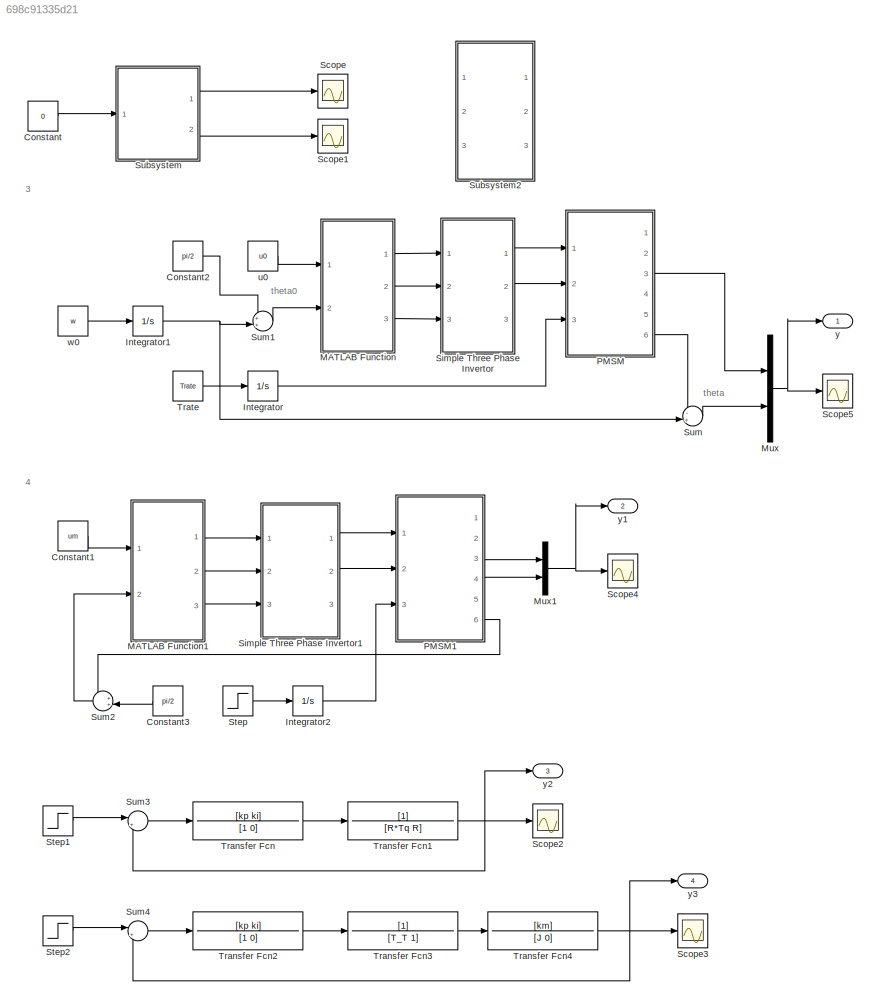
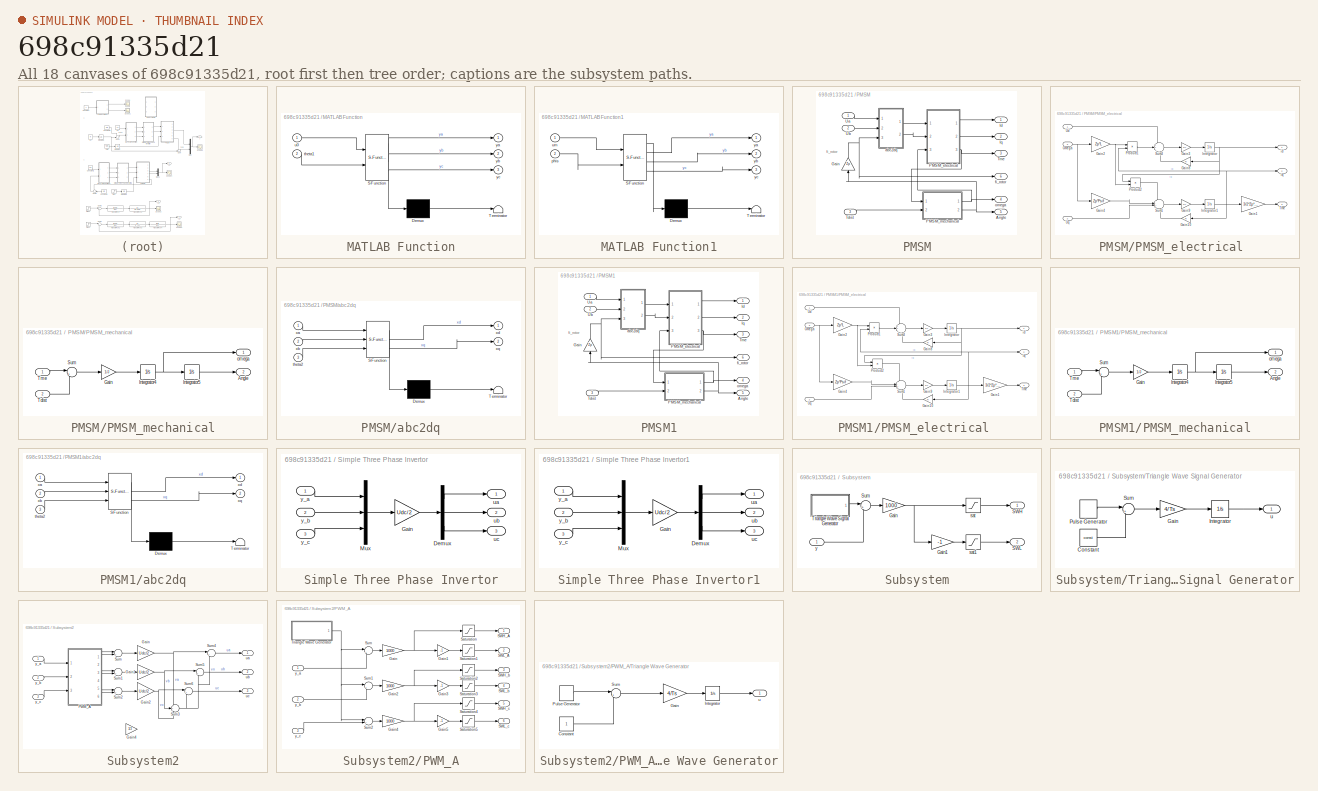
[diagram: thumbnail index - all 18 canvases of the model, root first then tree order]
MODEL slx_698c91335d21
KIND model
CONFIG AbsTol = auto
CONFIG EnableMultiTasking = off
CONFIG FixedStep = Ts
CONFIG MaxStep = Ts/10
CONFIG MinStep = auto
CONFIG RelTol = 1e-3
CONFIG SampleTimeConstraint = Unconstrained
CONFIG SolverName = ode23t
CONFIG StartTime = 0.0
CONFIG StopTime = Tmdl
BLOCK [Constant] Constant
  Value = 0
BLOCK [Constant] Constant1
  Value = um
BLOCK [Constant] Constant2
  Value = pi/2
BLOCK [Constant] Constant3
  NameLocation = top
  Value = pi/2
BLOCK [Integrator] Integrator
  Ports = [1, 1]
BLOCK [Integrator] Integrator1
  InitialCondition = -1
  Ports = [1, 1]
BLOCK [Integrator] Integrator2
  InitialCondition = -1
  Ports = [1, 1]
BLOCK [SubSystem] MATLAB Function
  ErrorFcn = Stateflow.Translate.translate
  PermitHierarchicalResolution = ExplicitOnly
  Ports = [2, 3]
  SFBlockType = MATLAB Function
  TreatAsAtomicUnit = on
BLOCK [Demux] MATLAB Function/ Demux 
  Outputs = 1
  Ports = [1, 1]
BLOCK [S-Function] MATLAB Function/ SFunction 
  EnableBusSupport = on
  FunctionName = sf_sfun
  PortCounts = [2 4]
  Ports = [2, 4]
  SFcnIsStateOwnerBlock = off
  SFunctionDeploymentMode = off
  Tag = Stateflow S-Function 1
BLOCK [Terminator] MATLAB Function/ Terminator 
BLOCK [Inport] MATLAB Function/theta1
  Port = 2
BLOCK [Inport] MATLAB Function/u0
BLOCK [Outport] MATLAB Function/ya
BLOCK [Outport] MATLAB Function/yb
  Port = 2
BLOCK [Outport] MATLAB Function/yc
  Port = 3
BLOCK [SubSystem] MATLAB Function1
  ErrorFcn = Stateflow.Translate.translate
  PermitHierarchicalResolution = ExplicitOnly
  Ports = [2, 3]
  SFBlockType = MATLAB Function
  TreatAsAtomicUnit = on
BLOCK [Demux] MATLAB Function1/ Demux 
  Outputs = 1
  Ports = [1, 1]
BLOCK [S-Function] MATLAB Function1/ SFunction 
  EnableBusSupport = on
  FunctionName = sf_sfun
  PortCounts = [2 4]
  Ports = [2, 4]
  SFcnIsStateOwnerBlock = off
  SFunctionDeploymentMode = off
  Tag = Stateflow S-Function 3
BLOCK [Terminator] MATLAB Function1/ Terminator 
BLOCK [Inport] MATLAB Function1/phis
  Port = 2
BLOCK [Inport] MATLAB Function1/um
BLOCK [Outport] MATLAB Function1/ya
BLOCK [Outport] MATLAB Function1/yb
  Port = 2
BLOCK [Outport] MATLAB Function1/yc
  Port = 3
BLOCK [Mux] Mux
  DisplayOption = bar
  Inputs = 2
  Ports = [2, 1]
BLOCK [Mux] Mux1
  DisplayOption = bar
  Inputs = 2
  Ports = [2, 1]
BLOCK [SubSystem] PMSM
  Ports = [3, 6]
BLOCK [Outport] PMSM/Angle
  Port = 5
BLOCK [Gain] PMSM/Gain
  Gain = Zp
  NameLocation = right
BLOCK [Outport] PMSM/Id
BLOCK [Outport] PMSM/Iq
  Port = 2
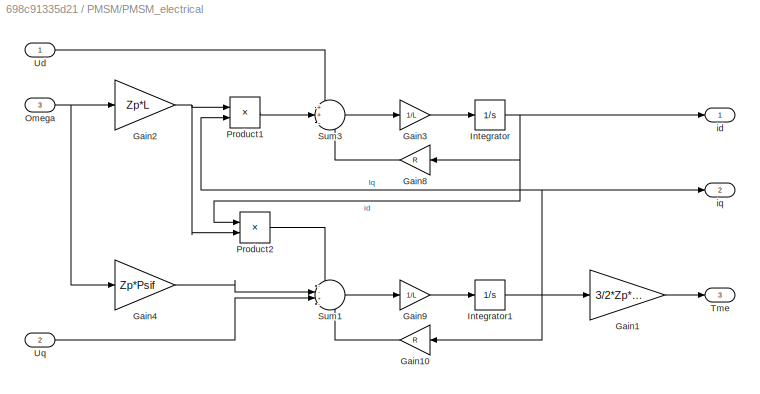
BLOCK [SubSystem] PMSM/PMSM_electrical 
  Ports = [3, 3]
BLOCK [Gain] PMSM/PMSM_electrical /Gain1
  Gain = 3/2*Zp*Psif
BLOCK [Gain] PMSM/PMSM_electrical /Gain10
  Gain = R
  NameLocation = top
BLOCK [Gain] PMSM/PMSM_electrical /Gain2
  Gain = Zp*L
BLOCK [Gain] PMSM/PMSM_electrical /Gain3
  Gain = 1/L
BLOCK [Gain] PMSM/PMSM_electrical /Gain4
  Gain = Zp*Psif
BLOCK [Gain] PMSM/PMSM_electrical /Gain8
  Gain = R
  NameLocation = top
BLOCK [Gain] PMSM/PMSM_electrical /Gain9
  Gain = 1/L
BLOCK [Integrator] PMSM/PMSM_electrical /Integrator
  Ports = [1, 1]
BLOCK [Integrator] PMSM/PMSM_electrical /Integrator1
  Ports = [1, 1]
BLOCK [Inport] PMSM/PMSM_electrical /Omega
  Port = 3
BLOCK [Product] PMSM/PMSM_electrical /Product1
  Ports = [2, 1]
BLOCK [Product] PMSM/PMSM_electrical /Product2
  Ports = [2, 1]
BLOCK [Sum] PMSM/PMSM_electrical /Sum1
  Inputs = --+-
  Ports = [4, 1]
BLOCK [Sum] PMSM/PMSM_electrical /Sum3
  Inputs = ++-
  Ports = [3, 1]
BLOCK [Outport] PMSM/PMSM_electrical /Tme
  Port = 3
BLOCK [Inport] PMSM/PMSM_electrical /Ud
BLOCK [Inport] PMSM/PMSM_electrical /Uq
  Port = 2
BLOCK [Outport] PMSM/PMSM_electrical /id
BLOCK [Outport] PMSM/PMSM_electrical /iq
  Port = 2
BLOCK [SubSystem] PMSM/PMSM_mechanical
  Ports = [2, 2]
BLOCK [Outport] PMSM/PMSM_mechanical/Angle
  Port = 2
BLOCK [Gain] PMSM/PMSM_mechanical/Gain
  Gain = 1/J
BLOCK [Integrator] PMSM/PMSM_mechanical/Integrator4
  Ports = [1, 1]
BLOCK [Integrator] PMSM/PMSM_mechanical/Integrator5
  Ports = [1, 1]
BLOCK [Sum] PMSM/PMSM_mechanical/Sum
  Inputs = |+-
  Ports = [2, 1]
BLOCK [Inport] PMSM/PMSM_mechanical/Tdist
  Port = 2
BLOCK [Inport] PMSM/PMSM_mechanical/Tme
BLOCK [Outport] PMSM/PMSM_mechanical/omega
BLOCK [Inport] PMSM/Tdist
  Port = 3
BLOCK [Outport] PMSM/Tme
  Port = 3
BLOCK [Inport] PMSM/Ua
BLOCK [Inport] PMSM/Ub
  Port = 2
BLOCK [SubSystem] PMSM/abc2dq
  ErrorFcn = Stateflow.Translate.translate
  PermitHierarchicalResolution = ExplicitOnly
  Ports = [3, 2]
  SFBlockType = MATLAB Function
  TreatAsAtomicUnit = on
BLOCK [Demux] PMSM/abc2dq/ Demux 
  Outputs = 1
  Ports = [1, 1]
BLOCK [S-Function] PMSM/abc2dq/ SFunction 
  EnableBusSupport = on
  FunctionName = sf_sfun
  PortCounts = [3 3]
  Ports = [3, 3]
  SFcnIsStateOwnerBlock = off
  SFunctionDeploymentMode = off
  Tag = Stateflow S-Function 2
BLOCK [Terminator] PMSM/abc2dq/ Terminator 
BLOCK [Inport] PMSM/abc2dq/theta2
  Port = 3
BLOCK [Inport] PMSM/abc2dq/xa
BLOCK [Inport] PMSM/abc2dq/xb
  Port = 2
BLOCK [Outport] PMSM/abc2dq/xd
BLOCK [Outport] PMSM/abc2dq/xq
  Port = 2
BLOCK [Outport] PMSM/fi_rotor
  Port = 6
BLOCK [Outport] PMSM/omega
  Port = 4
BLOCK [SubSystem] PMSM1
  Ports = [3, 6]
BLOCK [Outport] PMSM1/Angle
  Port = 5
BLOCK [Gain] PMSM1/Gain
  Gain = Zp
  NameLocation = right
BLOCK [Outport] PMSM1/Id
BLOCK [Outport] PMSM1/Iq
  Port = 2
BLOCK [SubSystem] PMSM1/PMSM_electrical 
  Ports = [3, 3]
BLOCK [Gain] PMSM1/PMSM_electrical /Gain1
  Gain = 3/2*Zp*Psif
BLOCK [Gain] PMSM1/PMSM_electrical /Gain10
  Gain = R
  NameLocation = top
BLOCK [Gain] PMSM1/PMSM_electrical /Gain2
  Gain = Zp*L
BLOCK [Gain] PMSM1/PMSM_electrical /Gain3
  Gain = 1/L
BLOCK [Gain] PMSM1/PMSM_electrical /Gain4
  Gain = Zp*Psif
BLOCK [Gain] PMSM1/PMSM_electrical /Gain8
  Gain = R
  NameLocation = top
BLOCK [Gain] PMSM1/PMSM_electrical /Gain9
  Gain = 1/L
BLOCK [Integrator] PMSM1/PMSM_electrical /Integrator
  Ports = [1, 1]
BLOCK [Integrator] PMSM1/PMSM_electrical /Integrator1
  Ports = [1, 1]
BLOCK [Inport] PMSM1/PMSM_electrical /Omega
  Port = 3
BLOCK [Product] PMSM1/PMSM_electrical /Product1
  Ports = [2, 1]
BLOCK [Product] PMSM1/PMSM_electrical /Product2
  Ports = [2, 1]
BLOCK [Sum] PMSM1/PMSM_electrical /Sum1
  Inputs = --+-
  Ports = [4, 1]
BLOCK [Sum] PMSM1/PMSM_electrical /Sum3
  Inputs = ++-
  Ports = [3, 1]
BLOCK [Outport] PMSM1/PMSM_electrical /Tme
  Port = 3
BLOCK [Inport] PMSM1/PMSM_electrical /Ud
BLOCK [Inport] PMSM1/PMSM_electrical /Uq
  Port = 2
BLOCK [Outport] PMSM1/PMSM_electrical /id
BLOCK [Outport] PMSM1/PMSM_electrical /iq
  Port = 2
BLOCK [SubSystem] PMSM1/PMSM_mechanical
  Ports = [2, 2]
BLOCK [Outport] PMSM1/PMSM_mechanical/Angle
  Port = 2
BLOCK [Gain] PMSM1/PMSM_mechanical/Gain
  Gain = 1/J
BLOCK [Integrator] PMSM1/PMSM_mechanical/Integrator4
  Ports = [1, 1]
BLOCK [Integrator] PMSM1/PMSM_mechanical/Integrator5
  Ports = [1, 1]
BLOCK [Sum] PMSM1/PMSM_mechanical/Sum
  Inputs = |+-
  Ports = [2, 1]
BLOCK [Inport] PMSM1/PMSM_mechanical/Tdist
  Port = 2
BLOCK [Inport] PMSM1/PMSM_mechanical/Tme
BLOCK [Outport] PMSM1/PMSM_mechanical/omega
BLOCK [Inport] PMSM1/Tdist
  Port = 3
BLOCK [Outport] PMSM1/Tme
  Port = 3
BLOCK [Inport] PMSM1/Ua
BLOCK [Inport] PMSM1/Ub
  Port = 2
BLOCK [SubSystem] PMSM1/abc2dq
  ErrorFcn = Stateflow.Translate.translate
  PermitHierarchicalResolution = ExplicitOnly
  Ports = [3, 2]
  SFBlockType = MATLAB Function
  TreatAsAtomicUnit = on
BLOCK [Demux] PMSM1/abc2dq/ Demux 
  Outputs = 1
  Ports = [1, 1]
BLOCK [S-Function] PMSM1/abc2dq/ SFunction 
  EnableBusSupport = on
  FunctionName = sf_sfun
  PortCounts = [3 3]
  Ports = [3, 3]
  SFcnIsStateOwnerBlock = off
  SFunctionDeploymentMode = off
  Tag = Stateflow S-Function 4
BLOCK [Terminator] PMSM1/abc2dq/ Terminator 
BLOCK [Inport] PMSM1/abc2dq/theta2
  Port = 3
BLOCK [Inport] PMSM1/abc2dq/xa
BLOCK [Inport] PMSM1/abc2dq/xb
  Port = 2
BLOCK [Outport] PMSM1/abc2dq/xd
BLOCK [Outport] PMSM1/abc2dq/xq
  Port = 2
BLOCK [Outport] PMSM1/fi_rotor
  Port = 6
BLOCK [Outport] PMSM1/omega
  Port = 4
BLOCK [Scope] Scope
  Floating = off
  NumInputPorts = 1
  Ports = [1]
  ScopeSpecificationString = Simulink.scopes.TimeScopeBlockCfg('CurrentConfiguration', extmgr.ConfigurationSet(extmgr.Configuration('Core','General UI',true,'FigureColor',[1 1 1]),extmgr.Configuration('Core','Source UI',true),extmgr.Configuration('Sources','WiredSimulink',true,'DataLoggingVariableName','ScopeData1'),extmgr.Configuration('Visuals','Time Domain',true,'SerializedDisplays',{struct('MinYLimReal','-0.125','MaxYLimR...<+2244ch>
BLOCK [Scope] Scope1
  Floating = off
  NumInputPorts = 1
  Ports = [1]
  ScopeSpecificationString = Simulink.scopes.TimeScopeBlockCfg('CurrentConfiguration', extmgr.ConfigurationSet(extmgr.Configuration('Core','General UI',true,'FigureColor',[1 1 1]),extmgr.Configuration('Core','Source UI',true),extmgr.Configuration('Sources','WiredSimulink',true),extmgr.Configuration('Visuals','Time Domain',true,'SerializedDisplays',{struct('MinYLimReal','-0.125','MaxYLimReal','1.125','YLabelReal','','MinYLimMa...<+2205ch>
BLOCK [Scope] Scope2
  Floating = off
  NumInputPorts = 1
  Ports = [1]
  ScopeSpecificationString = Simulink.scopes.TimeScopeBlockCfg('CurrentConfiguration', extmgr.ConfigurationSet(extmgr.Configuration('Core','General UI',true,'FigureColor',[1 1 1]),extmgr.Configuration('Core','Source UI',true),extmgr.Configuration('Sources','WiredSimulink',true,'DataLoggingVariableName','ScopeData1'),extmgr.Configuration('Visuals','Time Domain',true,'SerializedDisplays',{struct('MinYLimReal','0.00424','MaxYLim...<+2328ch>
BLOCK [Scope] Scope3
  Floating = off
  NumInputPorts = 1
  Ports = [1]
  ScopeSpecificationString = Simulink.scopes.TimeScopeBlockCfg('CurrentConfiguration', extmgr.ConfigurationSet(extmgr.Configuration('Core','General UI',true,'FigureColor',[1 1 1]),extmgr.Configuration('Core','Source UI',true),extmgr.Configuration('Sources','WiredSimulink',true,'DataLoggingVariableName','ScopeData2'),extmgr.Configuration('Visuals','Time Domain',true,'SerializedDisplays',{struct('MinYLimReal','0.00424','MaxYLim...<+2367ch>
BLOCK [Scope] Scope4
  Floating = off
  NumInputPorts = 1
  Ports = [1]
  ScopeSpecificationString = Simulink.scopes.TimeScopeBlockCfg('CurrentConfiguration', extmgr.ConfigurationSet(extmgr.Configuration('Core','General UI',true,'FigureColor',[1 1 1]),extmgr.Configuration('Core','Source UI',true),extmgr.Configuration('Sources','WiredSimulink',true,'DataLoggingVariableName','ScopeData3'),extmgr.Configuration('Visuals','Time Domain',true,'SerializedDisplays',{struct('MinYLimReal','-0.125','MaxYLimR...<+2244ch>
BLOCK [Scope] Scope5
  Floating = off
  NumInputPorts = 1
  Ports = [1]
  ScopeSpecificationString = Simulink.scopes.TimeScopeBlockCfg('CurrentConfiguration', extmgr.ConfigurationSet(extmgr.Configuration('Core','General UI',true,'FigureColor',[1 1 1]),extmgr.Configuration('Core','Source UI',true),extmgr.Configuration('Sources','WiredSimulink',true,'DataLoggingVariableName','ScopeData5'),extmgr.Configuration('Visuals','Time Domain',true,'SerializedDisplays',{struct('MinYLimReal','-5.11911','MaxYLi...<+2387ch>
BLOCK [SubSystem] Simple Three Phase Invertor
  Ports = [3, 3]
BLOCK [Demux] Simple Three Phase Invertor/Demux
  Outputs = 3
  Ports = [1, 3]
BLOCK [Gain] Simple Three Phase Invertor/Gain
  Gain = Udc/2
BLOCK [Mux] Simple Three Phase Invertor/Mux
  DisplayOption = bar
  Inputs = 3
  Ports = [3, 1]
BLOCK [Outport] Simple Three Phase Invertor/ua
BLOCK [Outport] Simple Three Phase Invertor/ub
  Port = 2
BLOCK [Outport] Simple Three Phase Invertor/uc
  Port = 3
BLOCK [Inport] Simple Three Phase Invertor/y_a
BLOCK [Inport] Simple Three Phase Invertor/y_b
  Port = 2
BLOCK [Inport] Simple Three Phase Invertor/y_c
  Port = 3
BLOCK [SubSystem] Simple Three Phase Invertor1
  Ports = [3, 3]
BLOCK [Demux] Simple Three Phase Invertor1/Demux
  Outputs = 3
  Ports = [1, 3]
BLOCK [Gain] Simple Three Phase Invertor1/Gain
  Gain = Udc/2
BLOCK [Mux] Simple Three Phase Invertor1/Mux
  DisplayOption = bar
  Inputs = 3
  Ports = [3, 1]
BLOCK [Outport] Simple Three Phase Invertor1/ua
BLOCK [Outport] Simple Three Phase Invertor1/ub
  Port = 2
BLOCK [Outport] Simple Three Phase Invertor1/uc
  Port = 3
BLOCK [Inport] Simple Three Phase Invertor1/y_a
BLOCK [Inport] Simple Three Phase Invertor1/y_b
  Port = 2
BLOCK [Inport] Simple Three Phase Invertor1/y_c
  Port = 3
BLOCK [Step] Step
  After = Trate
  SampleTime = 0
BLOCK [Step] Step1
  SampleTime = 0
  Time = 0
BLOCK [Step] Step2
  SampleTime = 0
  Time = 0
BLOCK [SubSystem] Subsystem
  Ports = [1, 2]
BLOCK [Gain] Subsystem/Gain
  Gain = 1000
BLOCK [Gain] Subsystem/Gain1
  Gain = -1
BLOCK [Outport] Subsystem/SWH
BLOCK [Outport] Subsystem/SWL
  Port = 2
BLOCK [Sum] Subsystem/Sum
  Inputs = |+-
  Ports = [2, 1]
BLOCK [SubSystem] Subsystem/Triangle Wave Signal Generator
  Ports = [0, 1]
BLOCK [Constant] Subsystem/Triangle Wave Signal Generator/Constant
  Value = const
BLOCK [Gain] Subsystem/Triangle Wave Signal Generator/Gain
  Gain = 4/Ts
BLOCK [Integrator] Subsystem/Triangle Wave Signal Generator/Integrator
  InitialCondition = -1
  Ports = [1, 1]
BLOCK [DiscretePulseGenerator] Subsystem/Triangle Wave Signal Generator/Pulse Generator
  Amplitude = 2
  Period = Ts
  Ports = [0, 1]
  PulseType = Time based
  PulseWidth = 50
BLOCK [Sum] Subsystem/Triangle Wave Signal Generator/Sum
  Inputs = |+-
  Ports = [2, 1]
BLOCK [Outport] Subsystem/Triangle Wave Signal Generator/u
BLOCK [Saturate] Subsystem/sat
  LowerLimit = 0
  UpperLimit = 1
BLOCK [Saturate] Subsystem/sat1
  LowerLimit = 0
  UpperLimit = 1
BLOCK [Inport] Subsystem/y
BLOCK [SubSystem] Subsystem2
  Ports = [3, 3]
BLOCK [Gain] Subsystem2/Gain
  Gain = Udc/2
BLOCK [Gain] Subsystem2/Gain1
  Gain = Udc/2
BLOCK [Gain] Subsystem2/Gain2
  Gain = Udc/2
BLOCK [Gain] Subsystem2/Gain4
  Gain = 1/3
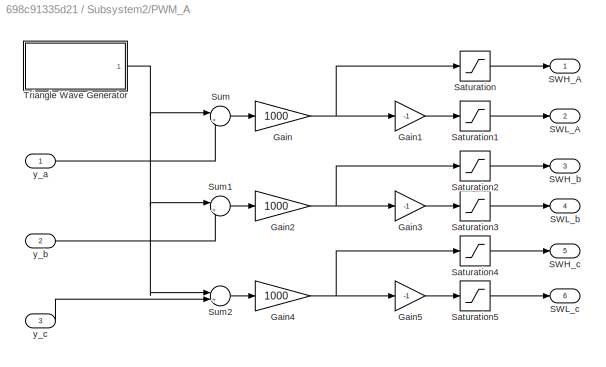
BLOCK [SubSystem] Subsystem2/PWM_A
  Ports = [3, 6]
BLOCK [Gain] Subsystem2/PWM_A/Gain
  Gain = 1000
BLOCK [Gain] Subsystem2/PWM_A/Gain1
  Gain = -1
BLOCK [Gain] Subsystem2/PWM_A/Gain2
  Gain = 1000
BLOCK [Gain] Subsystem2/PWM_A/Gain3
  Gain = -1
BLOCK [Gain] Subsystem2/PWM_A/Gain4
  Gain = 1000
BLOCK [Gain] Subsystem2/PWM_A/Gain5
  Gain = -1
BLOCK [Outport] Subsystem2/PWM_A/SWH_A
BLOCK [Outport] Subsystem2/PWM_A/SWH_b
  Port = 3
BLOCK [Outport] Subsystem2/PWM_A/SWH_c
  Port = 5
BLOCK [Outport] Subsystem2/PWM_A/SWL_A
  Port = 2
BLOCK [Outport] Subsystem2/PWM_A/SWL_b
  Port = 4
BLOCK [Outport] Subsystem2/PWM_A/SWL_c
  Port = 6
BLOCK [Saturate] Subsystem2/PWM_A/Saturation
  LowerLimit = 0
  UpperLimit = 1
BLOCK [Saturate] Subsystem2/PWM_A/Saturation1
  LowerLimit = 0
  UpperLimit = 1
BLOCK [Saturate] Subsystem2/PWM_A/Saturation2
  LowerLimit = 0
  UpperLimit = 1
BLOCK [Saturate] Subsystem2/PWM_A/Saturation3
  LowerLimit = 0
  UpperLimit = 1
BLOCK [Saturate] Subsystem2/PWM_A/Saturation4
  LowerLimit = 0
  UpperLimit = 1
BLOCK [Saturate] Subsystem2/PWM_A/Saturation5
  LowerLimit = 0
  UpperLimit = 1
BLOCK [Sum] Subsystem2/PWM_A/Sum
  Inputs = |+-
  Ports = [2, 1]
BLOCK [Sum] Subsystem2/PWM_A/Sum1
  Inputs = |+-
  Ports = [2, 1]
BLOCK [Sum] Subsystem2/PWM_A/Sum2
  Inputs = |+-
  Ports = [2, 1]
BLOCK [SubSystem] Subsystem2/PWM_A/Triangle Wave Generator
  Ports = [0, 1]
BLOCK [Constant] Subsystem2/PWM_A/Triangle Wave Generator/Constant
BLOCK [Gain] Subsystem2/PWM_A/Triangle Wave Generator/Gain
  Gain = 4/Ts
BLOCK [Integrator] Subsystem2/PWM_A/Triangle Wave Generator/Integrator
  InitialCondition = -1
  Ports = [1, 1]
BLOCK [DiscretePulseGenerator] Subsystem2/PWM_A/Triangle Wave Generator/Pulse Generator
  Amplitude = 2
  Period = Ts
  Ports = [0, 1]
  PulseType = Time based
  PulseWidth = 50
BLOCK [Sum] Subsystem2/PWM_A/Triangle Wave Generator/Sum
  Inputs = |+-
  Ports = [2, 1]
BLOCK [Outport] Subsystem2/PWM_A/Triangle Wave Generator/u
BLOCK [Inport] Subsystem2/PWM_A/y_a
BLOCK [Inport] Subsystem2/PWM_A/y_b
  Port = 2
BLOCK [Inport] Subsystem2/PWM_A/y_c
  Port = 3
BLOCK [Sum] Subsystem2/Sum
  Inputs = |+-
  Ports = [2, 1]
BLOCK [Sum] Subsystem2/Sum1
  Inputs = |+-
  Ports = [2, 1]
BLOCK [Sum] Subsystem2/Sum2
  Inputs = |+-
  Ports = [2, 1]
BLOCK [Sum] Subsystem2/Sum3
  Inputs = +++
  Ports = [3, 1]
BLOCK [Sum] Subsystem2/Sum4
  Inputs = |+-
  Ports = [2, 1]
BLOCK [Sum] Subsystem2/Sum5
  Inputs = |+-
  Ports = [2, 1]
BLOCK [Sum] Subsystem2/Sum6
  Inputs = |+-
  Ports = [2, 1]
BLOCK [Outport] Subsystem2/ua
BLOCK [Outport] Subsystem2/ub
  Port = 2
BLOCK [Outport] Subsystem2/uc
  Port = 3
BLOCK [Inport] Subsystem2/y_a
BLOCK [Inport] Subsystem2/y_b
  Port = 2
BLOCK [Inport] Subsystem2/y_c
  Port = 3
BLOCK [Sum] Sum
  Inputs = -+|
  Ports = [2, 1]
BLOCK [Sum] Sum1
  Inputs = ++|
  Ports = [2, 1]
BLOCK [Sum] Sum2
  Inputs = ++|
  NameLocation = top
  Ports = [2, 1]
BLOCK [Sum] Sum3
  Inputs = |+-
  Ports = [2, 1]
BLOCK [Sum] Sum4
  Inputs = |+-
  Ports = [2, 1]
BLOCK [TransferFcn] Transfer Fcn
  Denominator = [1 0]
  Numerator = [kp ki]
BLOCK [TransferFcn] Transfer Fcn1
  Denominator = [R*Tq R]
BLOCK [TransferFcn] Transfer Fcn2
  Denominator = [1 0]
  Numerator = [kp ki]
BLOCK [TransferFcn] Transfer Fcn3
  Denominator = [T_T 1]
BLOCK [TransferFcn] Transfer Fcn4
  Denominator = [J 0]
  Numerator = [km]
BLOCK [Constant] Trate
  Value = Trate
BLOCK [Constant] u0
  Value = u0
BLOCK [Constant] w0
  Value = w
BLOCK [Outport] y
BLOCK [Outport] y1
  Port = 2
BLOCK [Outport] y2
  Port = 3
BLOCK [Outport] y3
  Port = 4
ANNOTATION (root): 3
ANNOTATION (root): 4
ANNOTATION (root): theta0
ANNOTATION (root): theta
ANNOTATION PMSM: fi_rotor
ANNOTATION PMSM1: fi_rotor
LINE Constant1:1 -> MATLAB Function1:1
LINE Constant2:1 -> Sum1:1
LINE Constant3:1 -> Sum2:2
LINE Constant:1 -> Subsystem:1
NET Integrator1:1 -> Sum1:2, Sum:2
LINE Integrator2:1 -> PMSM1:3
LINE Integrator:1 -> PMSM:3
LINE MATLAB Function1:1 -> Simple Three Phase Invertor1:1
LINE MATLAB Function1:2 -> Simple Three Phase Invertor1:2
LINE MATLAB Function1:3 -> Simple Three Phase Invertor1:3
LINE MATLAB Function:1 -> Simple Three Phase Invertor:1
LINE MATLAB Function:2 -> Simple Three Phase Invertor:2
LINE MATLAB Function:3 -> Simple Three Phase Invertor:3
NET Mux1:1 -> Scope4:1, y1:1
NET Mux:1 -> Scope5:1, y:1
NET PMSM/Gain:1 -> PMSM/abc2dq:3, PMSM/fi_rotor:1
LINE PMSM/PMSM_electrical /Gain10:1 -> PMSM/PMSM_electrical /Sum1:4
LINE PMSM/PMSM_electrical /Gain1:1 -> PMSM/PMSM_electrical /Tme:1
NET PMSM/PMSM_electrical /Gain2:1 -> PMSM/PMSM_electrical /Product1:1, PMSM/PMSM_electrical /Product2:2
LINE PMSM/PMSM_electrical /Gain3:1 -> PMSM/PMSM_electrical /Integrator:1
LINE PMSM/PMSM_electrical /Gain4:1 -> PMSM/PMSM_electrical /Sum1:2
LINE PMSM/PMSM_electrical /Gain8:1 -> PMSM/PMSM_electrical /Sum3:3
LINE PMSM/PMSM_electrical /Gain9:1 -> PMSM/PMSM_electrical /Integrator1:1
NET PMSM/PMSM_electrical /Integrator1:1 -> PMSM/PMSM_electrical /Gain10:1, PMSM/PMSM_electrical /Gain1:1, PMSM/PMSM_electrical /Product1:2, PMSM/PMSM_electrical /iq:1
NET PMSM/PMSM_electrical /Integrator:1 -> PMSM/PMSM_electrical /Gain8:1, PMSM/PMSM_electrical /Product2:1, PMSM/PMSM_electrical /id:1
NET PMSM/PMSM_electrical /Omega:1 -> PMSM/PMSM_electrical /Gain2:1, PMSM/PMSM_electrical /Gain4:1
LINE PMSM/PMSM_electrical /Product1:1 -> PMSM/PMSM_electrical /Sum3:2
LINE PMSM/PMSM_electrical /Product2:1 -> PMSM/PMSM_electrical /Sum1:1
LINE PMSM/PMSM_electrical /Sum1:1 -> PMSM/PMSM_electrical /Gain9:1
LINE PMSM/PMSM_electrical /Sum3:1 -> PMSM/PMSM_electrical /Gain3:1
LINE PMSM/PMSM_electrical /Ud:1 -> PMSM/PMSM_electrical /Sum3:1
LINE PMSM/PMSM_electrical /Uq:1 -> PMSM/PMSM_electrical /Sum1:3
LINE PMSM/PMSM_electrical :1 -> PMSM/Id:1
LINE PMSM/PMSM_electrical :2 -> PMSM/Iq:1
NET PMSM/PMSM_electrical :3 -> PMSM/PMSM_mechanical:1, PMSM/Tme:1
LINE PMSM/PMSM_mechanical/Gain:1 -> PMSM/PMSM_mechanical/Integrator4:1
NET PMSM/PMSM_mechanical/Integrator4:1 -> PMSM/PMSM_mechanical/Integrator5:1, PMSM/PMSM_mechanical/omega:1
LINE PMSM/PMSM_mechanical/Integrator5:1 -> PMSM/PMSM_mechanical/Angle:1
LINE PMSM/PMSM_mechanical/Sum:1 -> PMSM/PMSM_mechanical/Gain:1
LINE PMSM/PMSM_mechanical/Tdist:1 -> PMSM/PMSM_mechanical/Sum:2
LINE PMSM/PMSM_mechanical/Tme:1 -> PMSM/PMSM_mechanical/Sum:1
NET PMSM/PMSM_mechanical:1 -> PMSM/PMSM_electrical :3, PMSM/omega:1
NET PMSM/PMSM_mechanical:2 -> PMSM/Angle:1, PMSM/Gain:1
LINE PMSM/Tdist:1 -> PMSM/PMSM_mechanical:2
LINE PMSM/Ua:1 -> PMSM/abc2dq:1
LINE PMSM/Ub:1 -> PMSM/abc2dq:2
LINE PMSM/abc2dq:1 -> PMSM/PMSM_electrical :1
LINE PMSM/abc2dq:2 -> PMSM/PMSM_electrical :2
NET PMSM1/Gain:1 -> PMSM1/abc2dq:3, PMSM1/fi_rotor:1
LINE PMSM1/PMSM_electrical /Gain10:1 -> PMSM1/PMSM_electrical /Sum1:4
LINE PMSM1/PMSM_electrical /Gain1:1 -> PMSM1/PMSM_electrical /Tme:1
NET PMSM1/PMSM_electrical /Gain2:1 -> PMSM1/PMSM_electrical /Product1:1, PMSM1/PMSM_electrical /Product2:2
LINE PMSM1/PMSM_electrical /Gain3:1 -> PMSM1/PMSM_electrical /Integrator:1
LINE PMSM1/PMSM_electrical /Gain4:1 -> PMSM1/PMSM_electrical /Sum1:2
LINE PMSM1/PMSM_electrical /Gain8:1 -> PMSM1/PMSM_electrical /Sum3:3
LINE PMSM1/PMSM_electrical /Gain9:1 -> PMSM1/PMSM_electrical /Integrator1:1
NET PMSM1/PMSM_electrical /Integrator1:1 -> PMSM1/PMSM_electrical /Gain10:1, PMSM1/PMSM_electrical /Gain1:1, PMSM1/PMSM_electrical /Product1:2, PMSM1/PMSM_electrical /iq:1
NET PMSM1/PMSM_electrical /Integrator:1 -> PMSM1/PMSM_electrical /Gain8:1, PMSM1/PMSM_electrical /Product2:1, PMSM1/PMSM_electrical /id:1
NET PMSM1/PMSM_electrical /Omega:1 -> PMSM1/PMSM_electrical /Gain2:1, PMSM1/PMSM_electrical /Gain4:1
LINE PMSM1/PMSM_electrical /Product1:1 -> PMSM1/PMSM_electrical /Sum3:2
LINE PMSM1/PMSM_electrical /Product2:1 -> PMSM1/PMSM_electrical /Sum1:1
LINE PMSM1/PMSM_electrical /Sum1:1 -> PMSM1/PMSM_electrical /Gain9:1
LINE PMSM1/PMSM_electrical /Sum3:1 -> PMSM1/PMSM_electrical /Gain3:1
LINE PMSM1/PMSM_electrical /Ud:1 -> PMSM1/PMSM_electrical /Sum3:1
LINE PMSM1/PMSM_electrical /Uq:1 -> PMSM1/PMSM_electrical /Sum1:3
LINE PMSM1/PMSM_electrical :1 -> PMSM1/Id:1
LINE PMSM1/PMSM_electrical :2 -> PMSM1/Iq:1
NET PMSM1/PMSM_electrical :3 -> PMSM1/PMSM_mechanical:1, PMSM1/Tme:1
LINE PMSM1/PMSM_mechanical/Gain:1 -> PMSM1/PMSM_mechanical/Integrator4:1
NET PMSM1/PMSM_mechanical/Integrator4:1 -> PMSM1/PMSM_mechanical/Integrator5:1, PMSM1/PMSM_mechanical/omega:1
LINE PMSM1/PMSM_mechanical/Integrator5:1 -> PMSM1/PMSM_mechanical/Angle:1
LINE PMSM1/PMSM_mechanical/Sum:1 -> PMSM1/PMSM_mechanical/Gain:1
LINE PMSM1/PMSM_mechanical/Tdist:1 -> PMSM1/PMSM_mechanical/Sum:2
LINE PMSM1/PMSM_mechanical/Tme:1 -> PMSM1/PMSM_mechanical/Sum:1
NET PMSM1/PMSM_mechanical:1 -> PMSM1/PMSM_electrical :3, PMSM1/omega:1
NET PMSM1/PMSM_mechanical:2 -> PMSM1/Angle:1, PMSM1/Gain:1
LINE PMSM1/Tdist:1 -> PMSM1/PMSM_mechanical:2
LINE PMSM1/Ua:1 -> PMSM1/abc2dq:1
LINE PMSM1/Ub:1 -> PMSM1/abc2dq:2
LINE PMSM1/abc2dq:1 -> PMSM1/PMSM_electrical :1
LINE PMSM1/abc2dq:2 -> PMSM1/PMSM_electrical :2
LINE PMSM1:3 -> Mux1:1
LINE PMSM1:4 -> Mux1:2
LINE PMSM1:6 -> Sum2:1
LINE PMSM:3 -> Mux:1
LINE PMSM:6 -> Sum:1
LINE Simple Three Phase Invertor/Demux:1 -> Simple Three Phase Invertor/ua:1
LINE Simple Three Phase Invertor/Demux:2 -> Simple Three Phase Invertor/ub:1
LINE Simple Three Phase Invertor/Demux:3 -> Simple Three Phase Invertor/uc:1
LINE Simple Three Phase Invertor/Gain:1 -> Simple Three Phase Invertor/Demux:1
LINE Simple Three Phase Invertor/Mux:1 -> Simple Three Phase Invertor/Gain:1
LINE Simple Three Phase Invertor/y_a:1 -> Simple Three Phase Invertor/Mux:1
LINE Simple Three Phase Invertor/y_b:1 -> Simple Three Phase Invertor/Mux:2
LINE Simple Three Phase Invertor/y_c:1 -> Simple Three Phase Invertor/Mux:3
LINE Simple Three Phase Invertor1/Demux:1 -> Simple Three Phase Invertor1/ua:1
LINE Simple Three Phase Invertor1/Demux:2 -> Simple Three Phase Invertor1/ub:1
LINE Simple Three Phase Invertor1/Demux:3 -> Simple Three Phase Invertor1/uc:1
LINE Simple Three Phase Invertor1/Gain:1 -> Simple Three Phase Invertor1/Demux:1
LINE Simple Three Phase Invertor1/Mux:1 -> Simple Three Phase Invertor1/Gain:1
LINE Simple Three Phase Invertor1/y_a:1 -> Simple Three Phase Invertor1/Mux:1
LINE Simple Three Phase Invertor1/y_b:1 -> Simple Three Phase Invertor1/Mux:2
LINE Simple Three Phase Invertor1/y_c:1 -> Simple Three Phase Invertor1/Mux:3
LINE Simple Three Phase Invertor1:1 -> PMSM1:1
LINE Simple Three Phase Invertor1:2 -> PMSM1:2
LINE Simple Three Phase Invertor:1 -> PMSM:1
LINE Simple Three Phase Invertor:2 -> PMSM:2
LINE Step1:1 -> Sum3:1
LINE Step2:1 -> Sum4:1
LINE Step:1 -> Integrator2:1
LINE Subsystem/Gain1:1 -> Subsystem/sat1:1
NET Subsystem/Gain:1 -> Subsystem/Gain1:1, Subsystem/sat:1
LINE Subsystem/Sum:1 -> Subsystem/Gain:1
LINE Subsystem/Triangle Wave Signal Generator/Constant:1 -> Subsystem/Triangle Wave Signal Generator/Sum:2
LINE Subsystem/Triangle Wave Signal Generator/Gain:1 -> Subsystem/Triangle Wave Signal Generator/Integrator:1
LINE Subsystem/Triangle Wave Signal Generator/Integrator:1 -> Subsystem/Triangle Wave Signal Generator/u:1
LINE Subsystem/Triangle Wave Signal Generator/Pulse Generator:1 -> Subsystem/Triangle Wave Signal Generator/Sum:1
LINE Subsystem/Triangle Wave Signal Generator/Sum:1 -> Subsystem/Triangle Wave Signal Generator/Gain:1
LINE Subsystem/Triangle Wave Signal Generator:1 -> Subsystem/Sum:1
LINE Subsystem/sat1:1 -> Subsystem/SWL:1
LINE Subsystem/sat:1 -> Subsystem/SWH:1
LINE Subsystem/y:1 -> Subsystem/Sum:2
NET Subsystem2/Gain1:1 -> Subsystem2/Sum3:2, Subsystem2/Sum5:1
NET Subsystem2/Gain2:1 -> Subsystem2/Sum3:3, Subsystem2/Sum6:1
NET Subsystem2/Gain:1 -> Subsystem2/Sum3:1, Subsystem2/Sum4:1
LINE Subsystem2/PWM_A/Gain1:1 -> Subsystem2/PWM_A/Saturation1:1
NET Subsystem2/PWM_A/Gain2:1 -> Subsystem2/PWM_A/Gain3:1, Subsystem2/PWM_A/Saturation2:1
LINE Subsystem2/PWM_A/Gain3:1 -> Subsystem2/PWM_A/Saturation3:1
NET Subsystem2/PWM_A/Gain4:1 -> Subsystem2/PWM_A/Gain5:1, Subsystem2/PWM_A/Saturation4:1
LINE Subsystem2/PWM_A/Gain5:1 -> Subsystem2/PWM_A/Saturation5:1
NET Subsystem2/PWM_A/Gain:1 -> Subsystem2/PWM_A/Gain1:1, Subsystem2/PWM_A/Saturation:1
LINE Subsystem2/PWM_A/Saturation1:1 -> Subsystem2/PWM_A/SWL_A:1
LINE Subsystem2/PWM_A/Saturation2:1 -> Subsystem2/PWM_A/SWH_b:1
LINE Subsystem2/PWM_A/Saturation3:1 -> Subsystem2/PWM_A/SWL_b:1
LINE Subsystem2/PWM_A/Saturation4:1 -> Subsystem2/PWM_A/SWH_c:1
LINE Subsystem2/PWM_A/Saturation5:1 -> Subsystem2/PWM_A/SWL_c:1
LINE Subsystem2/PWM_A/Saturation:1 -> Subsystem2/PWM_A/SWH_A:1
LINE Subsystem2/PWM_A/Sum1:1 -> Subsystem2/PWM_A/Gain2:1
LINE Subsystem2/PWM_A/Sum2:1 -> Subsystem2/PWM_A/Gain4:1
LINE Subsystem2/PWM_A/Sum:1 -> Subsystem2/PWM_A/Gain:1
LINE Subsystem2/PWM_A/Triangle Wave Generator/Constant:1 -> Subsystem2/PWM_A/Triangle Wave Generator/Sum:2
LINE Subsystem2/PWM_A/Triangle Wave Generator/Gain:1 -> Subsystem2/PWM_A/Triangle Wave Generator/Integrator:1
LINE Subsystem2/PWM_A/Triangle Wave Generator/Integrator:1 -> Subsystem2/PWM_A/Triangle Wave Generator/u:1
LINE Subsystem2/PWM_A/Triangle Wave Generator/Pulse Generator:1 -> Subsystem2/PWM_A/Triangle Wave Generator/Sum:1
LINE Subsystem2/PWM_A/Triangle Wave Generator/Sum:1 -> Subsystem2/PWM_A/Triangle Wave Generator/Gain:1
NET Subsystem2/PWM_A/Triangle Wave Generator:1 -> Subsystem2/PWM_A/Sum1:1, Subsystem2/PWM_A/Sum2:1, Subsystem2/PWM_A/Sum:1
LINE Subsystem2/PWM_A/y_a:1 -> Subsystem2/PWM_A/Sum:2
LINE Subsystem2/PWM_A/y_b:1 -> Subsystem2/PWM_A/Sum1:2
LINE Subsystem2/PWM_A/y_c:1 -> Subsystem2/PWM_A/Sum2:2
LINE Subsystem2/PWM_A:1 -> Subsystem2/Sum:1
LINE Subsystem2/PWM_A:2 -> Subsystem2/Sum:2
LINE Subsystem2/PWM_A:3 -> Subsystem2/Sum1:1
LINE Subsystem2/PWM_A:4 -> Subsystem2/Sum1:2
LINE Subsystem2/PWM_A:5 -> Subsystem2/Sum2:1
LINE Subsystem2/PWM_A:6 -> Subsystem2/Sum2:2
LINE Subsystem2/Sum1:1 -> Subsystem2/Gain1:1
LINE Subsystem2/Sum2:1 -> Subsystem2/Gain2:1
NET Subsystem2/Sum3:1 -> Subsystem2/Sum4:2, Subsystem2/Sum5:2, Subsystem2/Sum6:2
LINE Subsystem2/Sum4:1 -> Subsystem2/ua:1
LINE Subsystem2/Sum5:1 -> Subsystem2/ub:1
LINE Subsystem2/Sum6:1 -> Subsystem2/uc:1
LINE Subsystem2/Sum:1 -> Subsystem2/Gain:1
LINE Subsystem2/y_a:1 -> Subsystem2/PWM_A:1
LINE Subsystem2/y_b:1 -> Subsystem2/PWM_A:2
LINE Subsystem2/y_c:1 -> Subsystem2/PWM_A:3
LINE Subsystem:1 -> Scope:1
LINE Subsystem:2 -> Scope1:1
LINE Sum1:1 -> MATLAB Function:2
LINE Sum2:1 -> MATLAB Function1:2
LINE Sum3:1 -> Transfer Fcn:1
LINE Sum4:1 -> Transfer Fcn2:1
LINE Sum:1 -> Mux:2
NET Transfer Fcn1:1 -> Scope2:1, Sum3:2, y2:1
LINE Transfer Fcn2:1 -> Transfer Fcn3:1
LINE Transfer Fcn3:1 -> Transfer Fcn4:1
NET Transfer Fcn4:1 -> Scope3:1, Sum4:2, y3:1
LINE Transfer Fcn:1 -> Transfer Fcn1:1
LINE Trate:1 -> Integrator:1
LINE u0:1 -> MATLAB Function:1
LINE w0:1 -> Integrator1:1
note: NET lines group one-source signal fan-out (src -> all destinations, sorted); 1:1 wires keep LINE
CHART MATLAB Function states=1 transitions=1
  STATE_LABEL 'eML_blk_kernel()'
  STATE_LABEL 'SCRIPT:\nfunction [ya,yb,yc]=sinPWM(u0,theta1)\n    ya=u0*sin(theta1);\n    yb=u0*sin(theta1-2*pi/3);\n    yc=u0*sin(theta1+2*pi/3);\n'
CHART PMSM/abc2dq states=1 transitions=1
  STATE_LABEL 'eML_blk_kernel()'
  STATE_LABEL 'SCRIPT:\nfunction [xd,xq]=fcn(xa,xb,theta2)\n\n    xd = 2/sqrt(3)*(xa*sin(theta2+pi/3)+xb*sin(theta2));\n    xq = 2/sqrt(3)*(xa*cos(theta2+pi/3)+xb*cos(theta2));\n'
CHART MATLAB Function1 states=1 transitions=1
  STATE_LABEL 'eML_blk_kernel()'
  STATE_LABEL 'SCRIPT:\nfunction [ya,yb,yc]=fcn(um,phis)\n    ya=um*sin(phis);\n    yb=um*sin(phis-2*pi/3);\n    yc=um*sin(phis+2*pi/3);\n'
CHART PMSM1/abc2dq states=1 transitions=1
  STATE_LABEL 'eML_blk_kernel()'
  STATE_LABEL 'SCRIPT:\nfunction [xd,xq]=fcn(xa,xb,theta2)\n\n    xd = 2/sqrt(3)*(xa*sin(theta2+pi/3)+xb*sin(theta2));\n    xq = 2/sqrt(3)*(xa*cos(theta2+pi/3)+xb*cos(theta2));\n'
CHART  states=0 transitions=0
CHART  states=0 transitions=0
CHART  states=0 transitions=0
CHART  states=0 transitions=0
